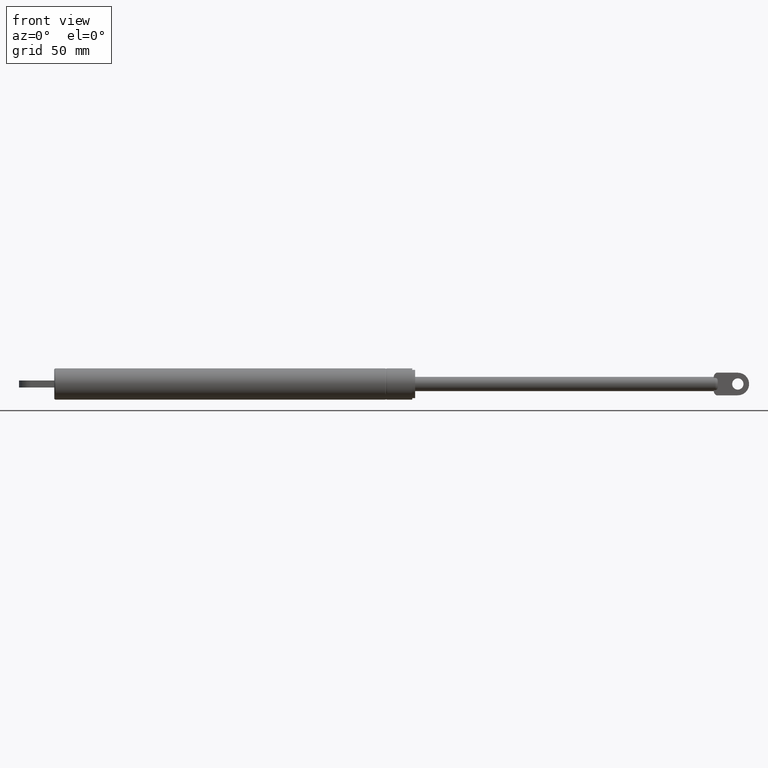
[diagram: clean part render]
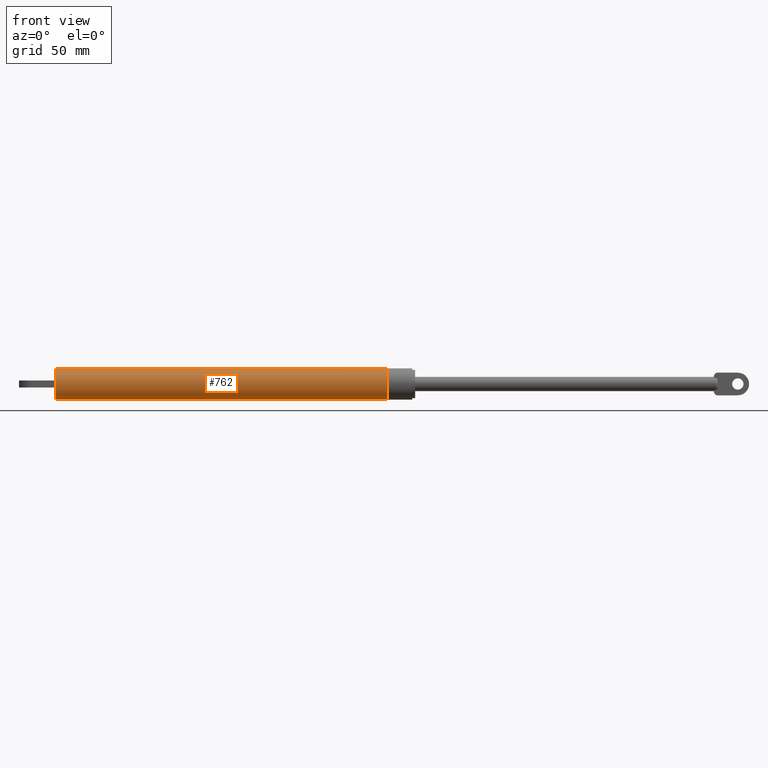
[diagram: same view with one face highlighted and labeled with its STEP entity id]
A machine part, front view. The second image highlights one B-rep face of the part: STEP entity #762.
In plain terms, the highlighted cylindrical surface (bore or boss wall) has radius 11 mm, axis along (-1, 0, 0).
Its self-contained STEP definition (entity closure, byte-faithful):
#147=CYLINDRICAL_SURFACE('',#825,11.);
#168=FACE_BOUND('',#256,.T.);
#198=FACE_OUTER_BOUND('',#255,.T.);
#255=EDGE_LOOP('',(#561));
#256=EDGE_LOOP('',(#562));
#337=CIRCLE('',#824,11.);
#338=CIRCLE('',#826,11.);
#389=VERTEX_POINT('',#1205);
#390=VERTEX_POINT('',#1208);
#462=EDGE_CURVE('',#389,#389,#337,.T.);
#463=EDGE_CURVE('',#390,#390,#338,.T.);
#561=ORIENTED_EDGE('',*,*,#463,.F.);
#562=ORIENTED_EDGE('',*,*,#462,.F.);
#762=ADVANCED_FACE('',(#198,#168),#147,.T.);
#824=AXIS2_PLACEMENT_3D('',#1206,#945,#946);
#825=AXIS2_PLACEMENT_3D('',#1207,#947,#948);
#826=AXIS2_PLACEMENT_3D('',#1209,#949,#950);
#945=DIRECTION('center_axis',(1.,0.,-1.22464679914735E-16));
#946=DIRECTION('ref_axis',(-1.23007664660174E-16,1.22464679914735E-16,-1.));
#947=DIRECTION('center_axis',(-1.,0.,1.22464679914735E-16));
#948=DIRECTION('ref_axis',(0.,0.,1.));
#949=DIRECTION('center_axis',(-1.,0.,1.22464679914735E-16));
#950=DIRECTION('ref_axis',(-1.26161707343768E-16,1.22464679914735E-16,-1.));
#1205=CARTESIAN_POINT('',(233.780313128902,-2.69422295812417E-15,10.9999999999999));
#1206=CARTESIAN_POINT('Origin',(233.780313128902,0.,-2.86298312176975E-14));
#1207=CARTESIAN_POINT('Origin',(117.,0.,-1.4328367550024E-14));
#1208=CARTESIAN_POINT('',(0.999999999999998,0.,11.));
#1209=CARTESIAN_POINT('Origin',(0.999999999999996,0.,-1.22464679914734E-16));